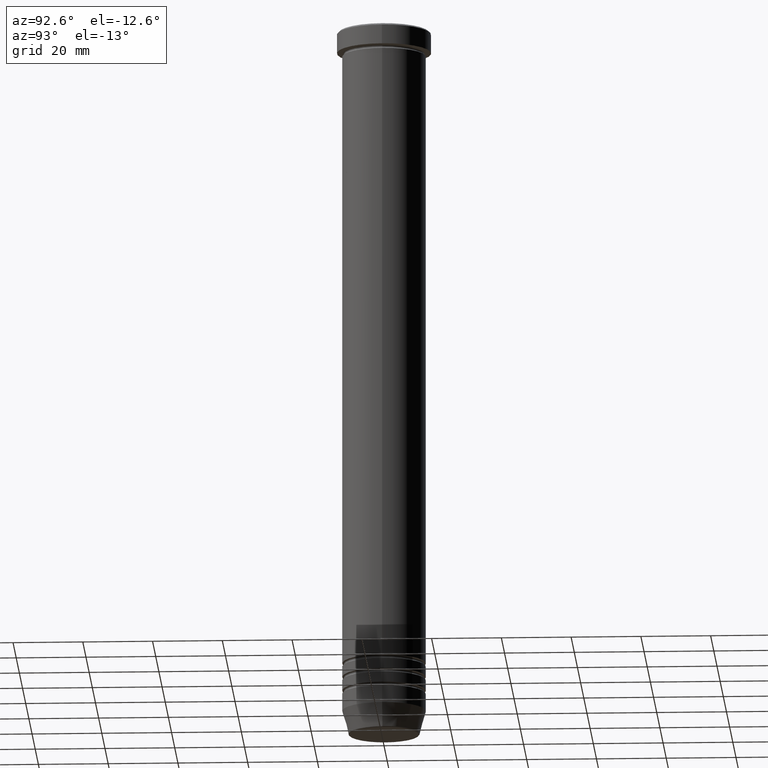
[diagram: clean part render]
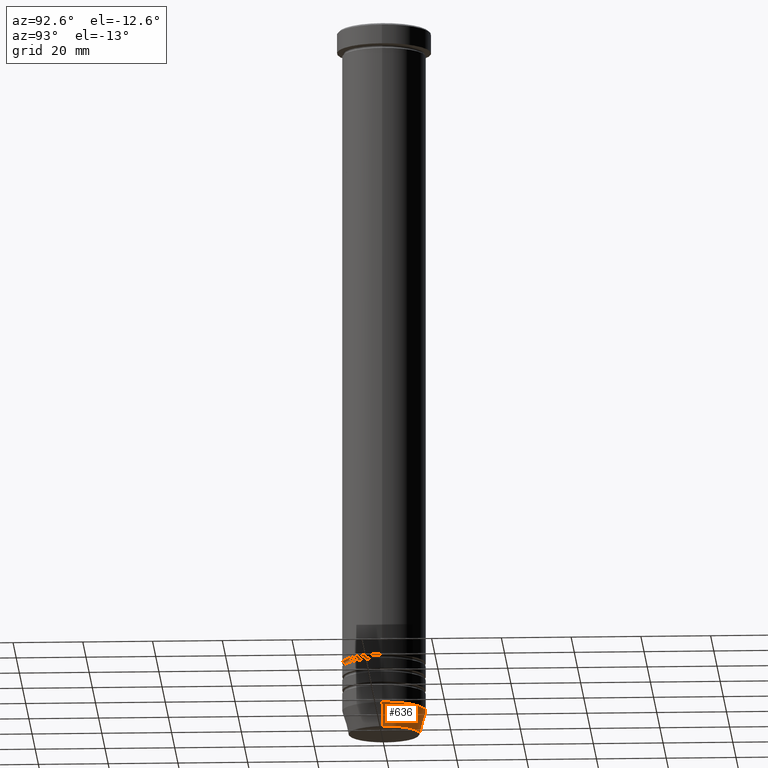
[diagram: same view with one face highlighted and labeled with its STEP entity id]
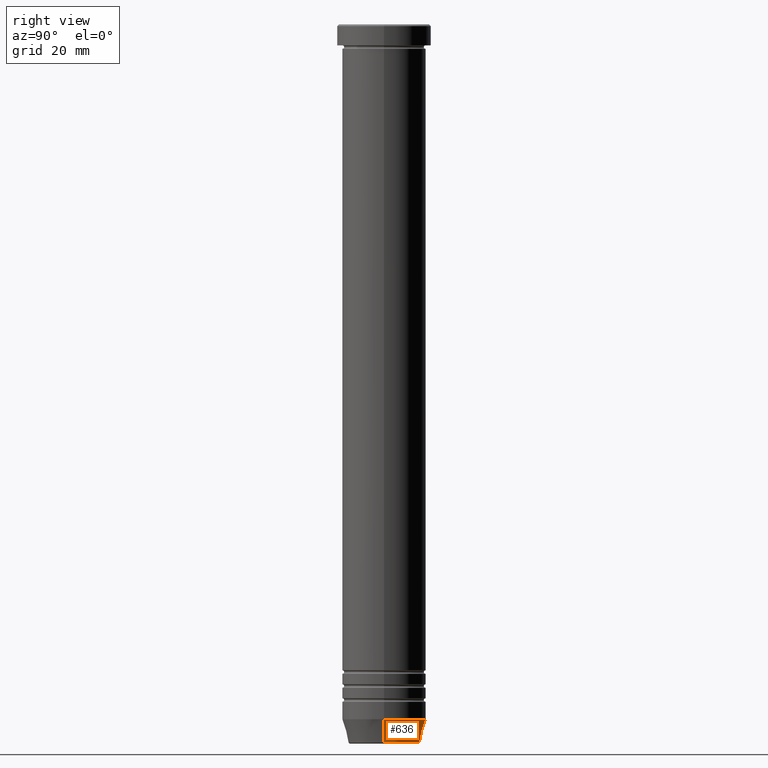
[diagram: same view with one face highlighted and labeled with its STEP entity id]
A machine part, auxiliary view. The second image highlights one B-rep face of the part: STEP entity #636.
A second angle (right view) of the same face is appended — the face is thin or edge-on in the first view.
In plain terms, the highlighted conical surface has half-angle 15 deg.
Its self-contained STEP definition (entity closure, byte-faithful):
#35 = CARTESIAN_POINT ( 'NONE',  ( 10.22365507213719305, 0.000000000000000000, -205.6294095225512706 ) ) ;
#56 = CARTESIAN_POINT ( 'NONE',  ( -10.12435565298214257, 1.239875974385399138E-15, -206.0000000000000284 ) ) ;
#59 = DIRECTION ( 'NONE',  ( -1.000000000000000000, 0.000000000000000000, 0.000000000000000000 ) ) ;
#110 = ORIENTED_EDGE ( 'NONE', *, *, #1073, .T. ) ;
#128 = LINE ( 'NONE', #156, #287 ) ;
#156 = CARTESIAN_POINT ( 'NONE',  ( 10.12435565298214257, 0.000000000000000000, -206.0000000000000284 ) ) ;
#253 = VERTEX_POINT ( 'NONE', #35 ) ;
#267 = DIRECTION ( 'NONE',  ( 1.000000000000000000, 0.000000000000000000, 0.000000000000000000 ) ) ;
#287 = VECTOR ( 'NONE', #318, 1000.000000000000114 ) ;
#307 = VECTOR ( 'NONE', #771, 1000.000000000000114 ) ;
#314 = FACE_OUTER_BOUND ( 'NONE', #784, .T. ) ;
#318 = DIRECTION ( 'NONE',  ( 0.2588190451025206840, 0.000000000000000000, 0.9659258262890683122 ) ) ;
#348 = CIRCLE ( 'NONE', #534, 10.22365507213719305 ) ;
#352 = DIRECTION ( 'NONE',  ( -0.000000000000000000, -0.000000000000000000, 1.000000000000000000 ) ) ;
#406 = CARTESIAN_POINT ( 'NONE',  ( -12.00000000000000178, 1.469576158976824144E-15, -199.0000000000000000 ) ) ;
#433 = AXIS2_PLACEMENT_3D ( 'NONE', #1029, #953, #267 ) ;
#484 = DIRECTION ( 'NONE',  ( 1.000000000000000000, 0.000000000000000000, 0.000000000000000000 ) ) ;
#489 = ORIENTED_EDGE ( 'NONE', *, *, #1063, .F. ) ;
#493 = CARTESIAN_POINT ( 'NONE',  ( 12.00000000000000178, 0.000000000000000000, -199.0000000000000000 ) ) ;
#506 = LINE ( 'NONE', #56, #307 ) ;
#520 = ORIENTED_EDGE ( 'NONE', *, *, #835, .F. ) ;
#534 = AXIS2_PLACEMENT_3D ( 'NONE', #1139, #352, #59 ) ;
#636 = ADVANCED_FACE ( 'NONE', ( #314 ), #1098, .T. ) ;
#771 = DIRECTION ( 'NONE',  ( -0.2588190451025206840, 3.169619151431763092E-17, 0.9659258262890683122 ) ) ;
#784 = EDGE_LOOP ( 'NONE', ( #981, #110, #520, #489 ) ) ;
#835 = EDGE_CURVE ( 'NONE', #1090, #1126, #867, .T. ) ;
#838 = CARTESIAN_POINT ( 'NONE',  ( 0.000000000000000000, 0.000000000000000000, -206.0000000000000284 ) ) ;
#867 = CIRCLE ( 'NONE', #433, 12.00000000000000178 ) ;
#883 = EDGE_CURVE ( 'NONE', #253, #1132, #348, .T. ) ;
#953 = DIRECTION ( 'NONE',  ( -0.000000000000000000, -0.000000000000000000, 1.000000000000000000 ) ) ;
#958 = AXIS2_PLACEMENT_3D ( 'NONE', #838, #1005, #484 ) ;
#981 = ORIENTED_EDGE ( 'NONE', *, *, #883, .T. ) ;
#1005 = DIRECTION ( 'NONE',  ( -0.000000000000000000, -0.000000000000000000, 1.000000000000000000 ) ) ;
#1029 = CARTESIAN_POINT ( 'NONE',  ( 0.000000000000000000, 0.000000000000000000, -199.0000000000000000 ) ) ;
#1063 = EDGE_CURVE ( 'NONE', #253, #1090, #128, .T. ) ;
#1073 = EDGE_CURVE ( 'NONE', #1132, #1126, #506, .T. ) ;
#1090 = VERTEX_POINT ( 'NONE', #493 ) ;
#1098 = CONICAL_SURFACE ( 'NONE', #958, 10.12435565298214257, 0.2617993877991493523 ) ;
#1117 = CARTESIAN_POINT ( 'NONE',  ( -10.22365507213719305, 1.360806402472382941E-15, -205.6294095225512706 ) ) ;
#1126 = VERTEX_POINT ( 'NONE', #406 ) ;
#1132 = VERTEX_POINT ( 'NONE', #1117 ) ;
#1139 = CARTESIAN_POINT ( 'NONE',  ( 0.000000000000000000, 0.000000000000000000, -205.6294095225512706 ) ) ;